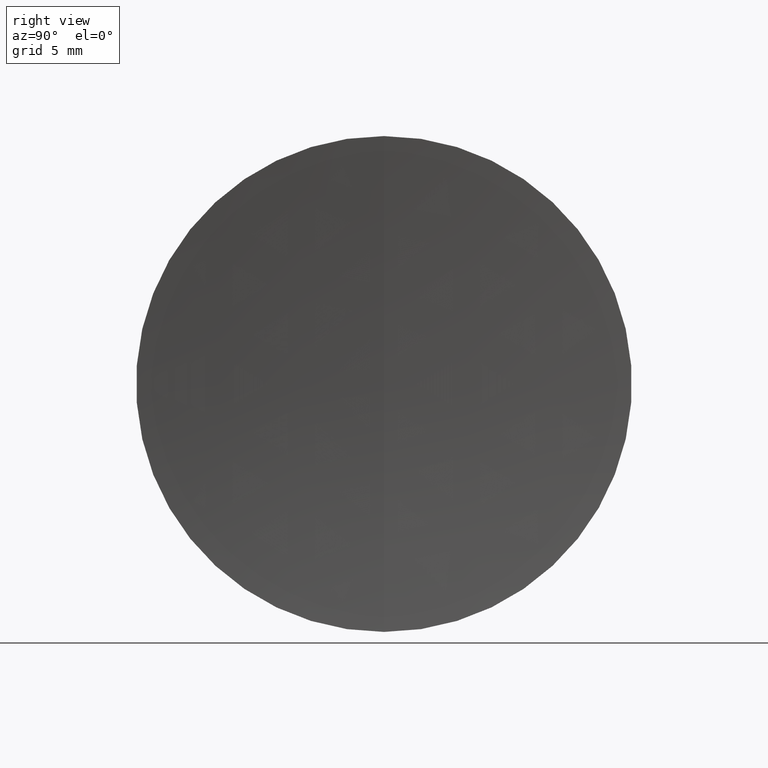
[diagram: clean part render]
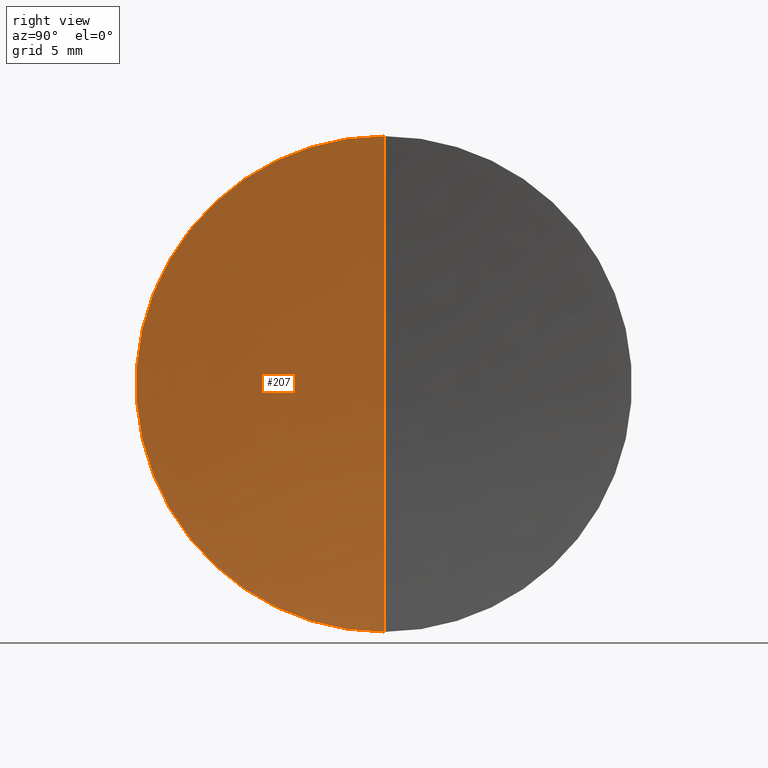
[diagram: same view with one face highlighted and labeled with its STEP entity id]
A machine part, right view. The second image highlights one B-rep face of the part: STEP entity #207.
In plain terms, the highlighted spherical surface has radius 112.08 mm.
Its self-contained STEP definition (entity closure, byte-faithful):
#3 = SPHERICAL_SURFACE ( 'NONE', #336, 112.0800000000000000 ) ;
#10 = CARTESIAN_POINT ( 'NONE',  ( 44.02847447573057600, 0.0000000000000000000, -12.70000000000000300 ) ) ;
#23 = EDGE_CURVE ( 'NONE', #196, #159, #43, .T. ) ;
#27 = CARTESIAN_POINT ( 'NONE',  ( 155.3866192160233800, 0.0000000000000000000, 0.0000000000000000000 ) ) ;
#34 = DIRECTION ( 'NONE',  ( -0.0000000000000000000, -1.000000000000000000, -0.0000000000000000000 ) ) ;
#37 = CARTESIAN_POINT ( 'NONE',  ( 43.30661921602337100, 0.0000000000000000000, -6.862920662421767300E-015 ) ) ;
#42 = DIRECTION ( 'NONE',  ( 0.0000000000000000000, -1.000000000000000000, -1.224646799147353200E-016 ) ) ;
#43 = CIRCLE ( 'NONE', #244, 112.0800000000000000 ) ;
#74 = ORIENTED_EDGE ( 'NONE', *, *, #94, .T. ) ;
#89 = CIRCLE ( 'NONE', #221, 112.0800000000000000 ) ;
#94 = EDGE_CURVE ( 'NONE', #145, #159, #89, .T. ) ;
#96 = EDGE_LOOP ( 'NONE', ( #139, #216, #74 ) ) ;
#98 = DIRECTION ( 'NONE',  ( 0.0000000000000000000, 0.0000000000000000000, 1.000000000000000000 ) ) ;
#103 = CARTESIAN_POINT ( 'NONE',  ( 44.02847447573056900, 0.0000000000000000000, 0.0000000000000000000 ) ) ;
#109 = CARTESIAN_POINT ( 'NONE',  ( 44.02847447573057600, -1.555301434917138800E-015, 12.70000000000000300 ) ) ;
#113 = CARTESIAN_POINT ( 'NONE',  ( 155.3866192160233800, 0.0000000000000000000, 0.0000000000000000000 ) ) ;
#130 = FACE_OUTER_BOUND ( 'NONE', #96, .T. ) ;
#139 = ORIENTED_EDGE ( 'NONE', *, *, #23, .F. ) ;
#145 = VERTEX_POINT ( 'NONE', #10 ) ;
#159 = VERTEX_POINT ( 'NONE', #37 ) ;
#196 = VERTEX_POINT ( 'NONE', #109 ) ;
#207 = ADVANCED_FACE ( 'NONE', ( #130 ), #3, .F. ) ;
#216 = ORIENTED_EDGE ( 'NONE', *, *, #237, .F. ) ;
#218 = DIRECTION ( 'NONE',  ( 0.0000000000000000000, 0.0000000000000000000, -1.000000000000000000 ) ) ;
#221 = AXIS2_PLACEMENT_3D ( 'NONE', #27, #245, #271 ) ;
#237 = EDGE_CURVE ( 'NONE', #145, #196, #319, .T. ) ;
#244 = AXIS2_PLACEMENT_3D ( 'NONE', #323, #42, #287 ) ;
#245 = DIRECTION ( 'NONE',  ( 0.0000000000000000000, 1.000000000000000000, -0.0000000000000000000 ) ) ;
#271 = DIRECTION ( 'NONE',  ( 0.0000000000000000000, 0.0000000000000000000, 1.000000000000000000 ) ) ;
#287 = DIRECTION ( 'NONE',  ( 0.0000000000000000000, 1.224646799147353200E-016, -1.000000000000000000 ) ) ;
#300 = DIRECTION ( 'NONE',  ( -1.000000000000000000, -0.0000000000000000000, -0.0000000000000000000 ) ) ;
#315 = AXIS2_PLACEMENT_3D ( 'NONE', #103, #300, #98 ) ;
#319 = CIRCLE ( 'NONE', #315, 12.70000000000001700 ) ;
#323 = CARTESIAN_POINT ( 'NONE',  ( 155.3866192160233800, 0.0000000000000000000, 0.0000000000000000000 ) ) ;
#336 = AXIS2_PLACEMENT_3D ( 'NONE', #113, #34, #218 ) ;